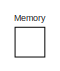
[diagram: root canvas - part 1/2, top right region]
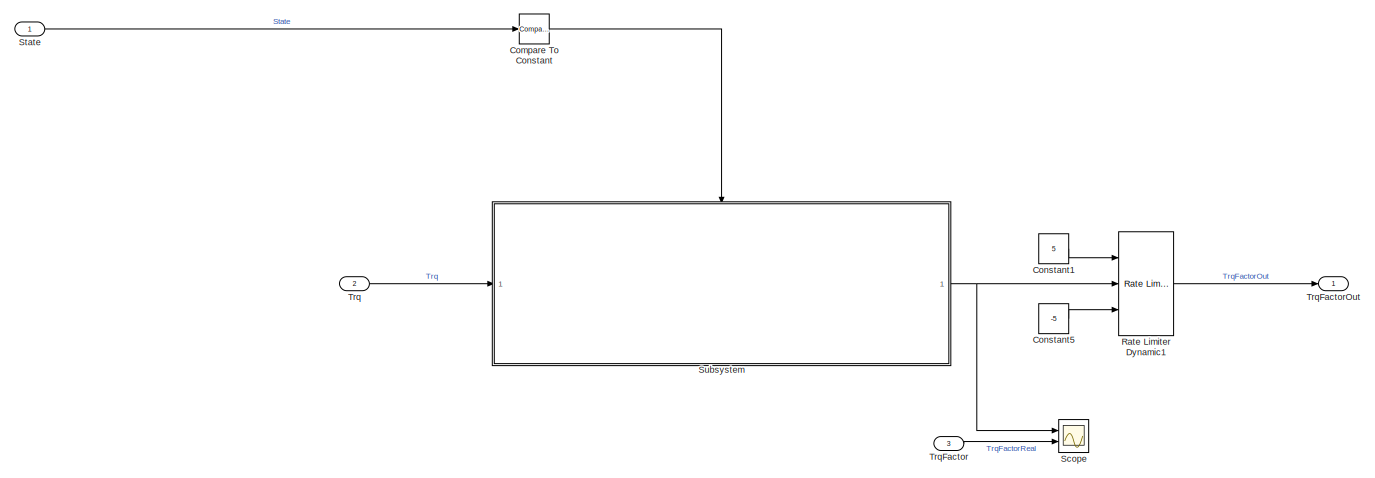
[diagram: root canvas - part 2/2, center side, full height]
MODEL slx_c1973f408156
KIND model
CONFIG AbsTol = auto
CONFIG EnableMultiTasking = off
CONFIG FixedStep = 0.01
CONFIG MaxStep = auto
CONFIG MinStep = auto
CONFIG RelTol = 1e-3
CONFIG SampleTimeConstraint = Unconstrained
CONFIG Solver = FixedStepAuto
CONFIG SolverName = FixedStepAuto
CONFIG StartTime = 0.0
CONFIG StopTime = 130
BLOCK [Reference] Compare To Constant  REF=simulink/Logic and Bit
Operations/Compare
To Constant
  Ports = [1, 1]
  SourceBlock = simulink/Logic and Bit\nOperations/Compare\nTo Constant
  SourceProductBaseCode = SL
  SourceProductName = Simulink
  SourceType = Compare To Constant
BLOCK [Constant] Constant1
  Value = 5
BLOCK [Constant] Constant5
  Value = -5
BLOCK [Memory] Memory
BLOCK [Reference] Rate Limiter Dynamic1  REF=simulink/Discontinuities/Rate Limiter
Dynamic
  Ports = [3, 1]
  SourceBlock = simulink/Discontinuities/Rate Limiter\nDynamic
  SourceProductBaseCode = SL
  SourceProductName = Simulink
  SourceType = Rate Limiter Dynamic
BLOCK [Scope] Scope
  Floating = off
  NumInputPorts = 2
  Ports = [2]
  ScopeSpecificationString = Simulink.scopes.TimeScopeBlockCfg('CurrentConfiguration', extmgr.ConfigurationSet(extmgr.Configuration('Core','General UI',true),extmgr.Configuration('Core','Source UI',true),extmgr.Configuration('Sources','WiredSimulink',true),extmgr.Configuration('Visuals','Time Domain',true,'SerializedDisplays',{struct('MinYLimReal','-0.125','MaxYLimReal','1.125','YLabelReal','','MinYLimMag','0.00000','MaxYLimM...<+1361ch>
BLOCK [Inport] State
  IconDisplay = Port number
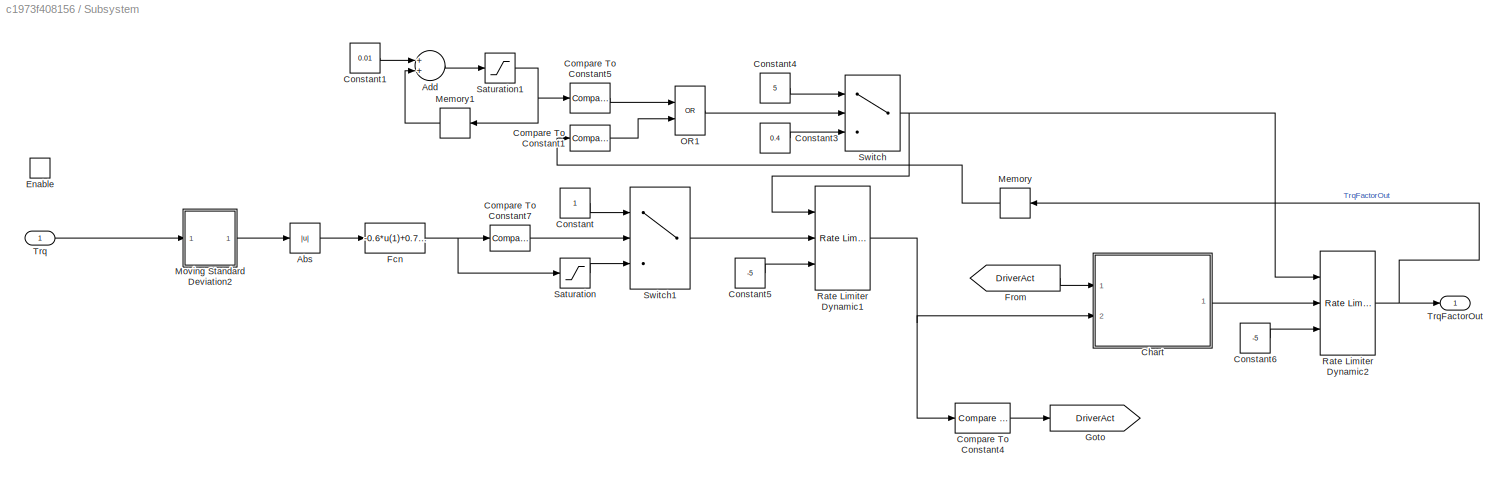
BLOCK [SubSystem] Subsystem
  Ports = [1, 1, 1]
  RequestExecContextInheritance = off
BLOCK [Abs] Subsystem/Abs
  SaturateOnIntegerOverflow = off
BLOCK [Sum] Subsystem/Add
  InputSameDT = off
  OutDataTypeStr = Inherit: Inherit via internal rule
  Ports = [2, 1]
  SaturateOnIntegerOverflow = off
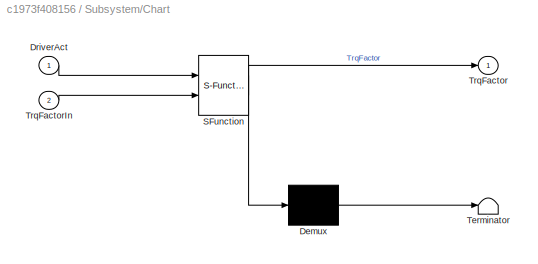
BLOCK [SubSystem] Subsystem/Chart
  ErrorFcn = Stateflow.Translate.translate
  PermitHierarchicalResolution = ExplicitOnly
  Ports = [2, 1]
  RequestExecContextInheritance = off
  SFBlockType = Chart
  TreatAsAtomicUnit = on
BLOCK [Demux] Subsystem/Chart/ Demux 
  Outputs = 1
  Ports = [1, 1]
BLOCK [S-Function] Subsystem/Chart/ SFunction 
  EnableBusSupport = on
  FunctionName = sf_sfun
  PortCounts = [2 2]
  Ports = [2, 2]
  SFcnIsStateOwnerBlock = off
  SFunctionDeploymentMode = off
  Tag = Stateflow S-Function TrqFactor 3
BLOCK [Terminator] Subsystem/Chart/ Terminator 
BLOCK [Inport] Subsystem/Chart/DriverAct
  IconDisplay = Port number
BLOCK [Outport] Subsystem/Chart/TrqFactor
  IconDisplay = Port number
BLOCK [Inport] Subsystem/Chart/TrqFactorIn
  IconDisplay = Port number
  Port = 2
BLOCK [Reference] Subsystem/Compare To Constant1  REF=simulink/Logic and Bit
Operations/Compare
To Constant
  Ports = [1, 1]
  SourceBlock = simulink/Logic and Bit\nOperations/Compare\nTo Constant
  SourceProductBaseCode = SL
  SourceProductName = Simulink
  SourceType = Compare To Constant
BLOCK [Reference] Subsystem/Compare To Constant4  REF=simulink/Logic and Bit
Operations/Compare
To Constant
  Ports = [1, 1]
  SourceBlock = simulink/Logic and Bit\nOperations/Compare\nTo Constant
  SourceProductBaseCode = SL
  SourceProductName = Simulink
  SourceType = Compare To Constant
BLOCK [Reference] Subsystem/Compare To Constant5  REF=simulink/Logic and Bit
Operations/Compare
To Constant
  Ports = [1, 1]
  SourceBlock = simulink/Logic and Bit\nOperations/Compare\nTo Constant
  SourceProductBaseCode = SL
  SourceProductName = Simulink
  SourceType = Compare To Constant
BLOCK [Reference] Subsystem/Compare To Constant7  REF=simulink/Logic and Bit
Operations/Compare
To Constant
  Ports = [1, 1]
  SourceBlock = simulink/Logic and Bit\nOperations/Compare\nTo Constant
  SourceProductBaseCode = SL
  SourceProductName = Simulink
  SourceType = Compare To Constant
BLOCK [Constant] Subsystem/Constant
BLOCK [Constant] Subsystem/Constant1
  Value = 0.01
BLOCK [Constant] Subsystem/Constant3
  Value = 0.4
BLOCK [Constant] Subsystem/Constant4
  Value = 5
BLOCK [Constant] Subsystem/Constant5
  Value = -5
BLOCK [Constant] Subsystem/Constant6
  Value = -5
BLOCK [EnablePort] Subsystem/Enable
  Ports = []
  StatesWhenEnabling = reset
BLOCK [Fcn] Subsystem/Fcn
  Expr = -0.6*u(1)+0.75
BLOCK [From] Subsystem/From
  GotoTag = DriverAct
BLOCK [Goto] Subsystem/Goto
  GotoTag = DriverAct
BLOCK [Memory] Subsystem/Memory
BLOCK [Memory] Subsystem/Memory1
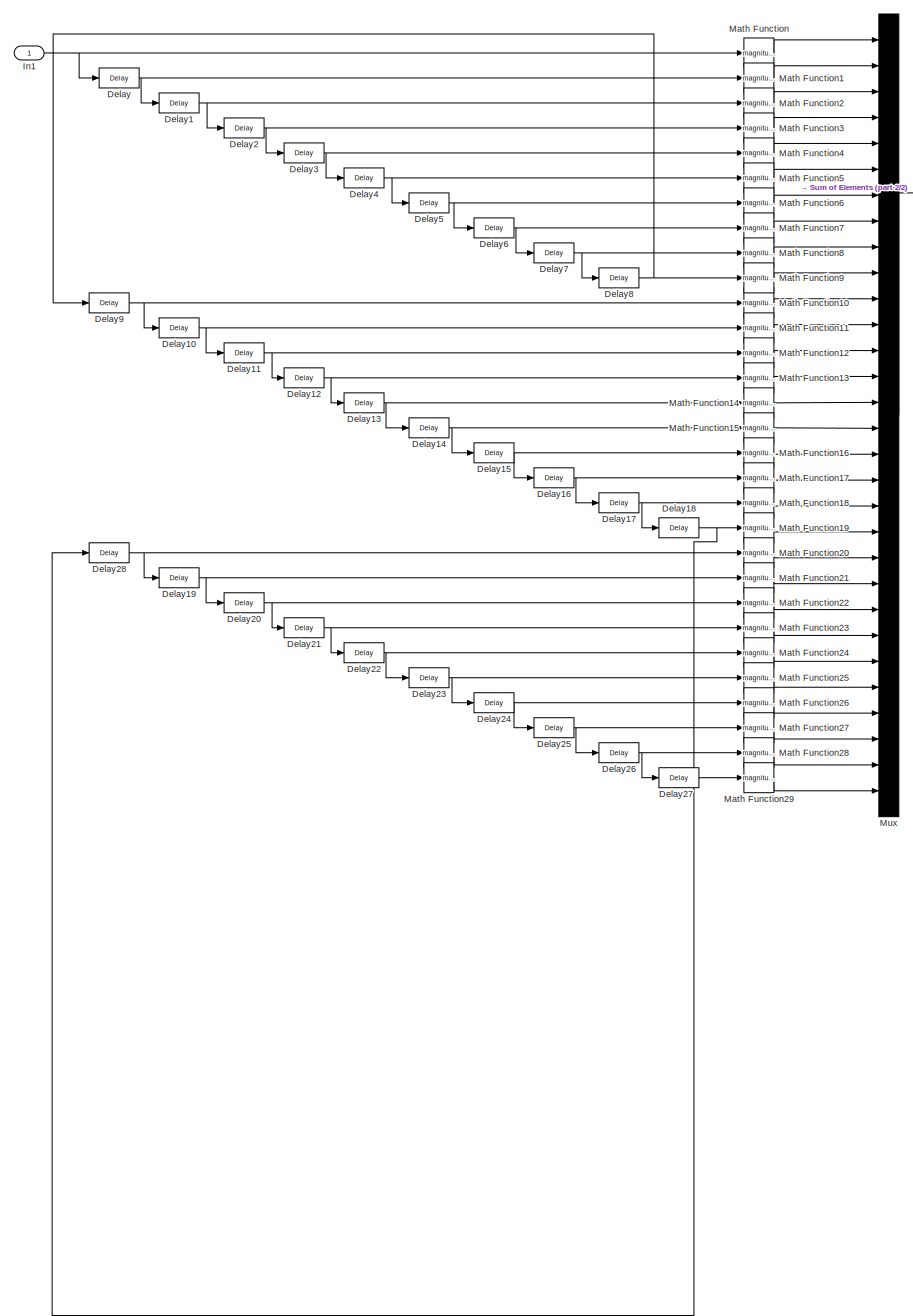
[diagram: Subsystem/Moving Standard Deviation2 - part 1/2, left side, full height]
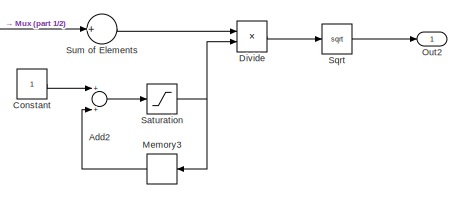
[diagram: Subsystem/Moving Standard Deviation2 - part 2/2, top right region]
BLOCK [SubSystem] Subsystem/Moving Standard Deviation2
  Ports = [1, 1]
  RTWSystemCode = Reusable function
  RequestExecContextInheritance = off
  TreatAsAtomicUnit = on
BLOCK [Sum] Subsystem/Moving Standard Deviation2/Add2
  InputSameDT = off
  OutDataTypeStr = Inherit: Inherit via internal rule
  Ports = [2, 1]
  SaturateOnIntegerOverflow = off
BLOCK [Constant] Subsystem/Moving Standard Deviation2/Constant
BLOCK [Delay] Subsystem/Moving Standard Deviation2/Delay
  DelayLength = 1
  InputPortMap = u0
  Ports = [1, 1]
BLOCK [Delay] Subsystem/Moving Standard Deviation2/Delay1
  DelayLength = 1
  InputPortMap = u0
  Ports = [1, 1]
BLOCK [Delay] Subsystem/Moving Standard Deviation2/Delay10
  DelayLength = 1
  InputPortMap = u0
  Ports = [1, 1]
BLOCK [Delay] Subsystem/Moving Standard Deviation2/Delay11
  DelayLength = 1
  InputPortMap = u0
  Ports = [1, 1]
BLOCK [Delay] Subsystem/Moving Standard Deviation2/Delay12
  DelayLength = 1
  InputPortMap = u0
  Ports = [1, 1]
BLOCK [Delay] Subsystem/Moving Standard Deviation2/Delay13
  DelayLength = 1
  InputPortMap = u0
  Ports = [1, 1]
BLOCK [Delay] Subsystem/Moving Standard Deviation2/Delay14
  DelayLength = 1
  InputPortMap = u0
  Ports = [1, 1]
BLOCK [Delay] Subsystem/Moving Standard Deviation2/Delay15
  DelayLength = 1
  InputPortMap = u0
  Ports = [1, 1]
BLOCK [Delay] Subsystem/Moving Standard Deviation2/Delay16
  DelayLength = 1
  InputPortMap = u0
  Ports = [1, 1]
BLOCK [Delay] Subsystem/Moving Standard Deviation2/Delay17
  DelayLength = 1
  InputPortMap = u0
  Ports = [1, 1]
BLOCK [Delay] Subsystem/Moving Standard Deviation2/Delay18
  DelayLength = 1
  InputPortMap = u0
  Ports = [1, 1]
BLOCK [Delay] Subsystem/Moving Standard Deviation2/Delay19
  DelayLength = 1
  InputPortMap = u0
  Ports = [1, 1]
BLOCK [Delay] Subsystem/Moving Standard Deviation2/Delay2
  DelayLength = 1
  InputPortMap = u0
  Ports = [1, 1]
BLOCK [Delay] Subsystem/Moving Standard Deviation2/Delay20
  DelayLength = 1
  InputPortMap = u0
  Ports = [1, 1]
BLOCK [Delay] Subsystem/Moving Standard Deviation2/Delay21
  DelayLength = 1
  InputPortMap = u0
  Ports = [1, 1]
BLOCK [Delay] Subsystem/Moving Standard Deviation2/Delay22
  DelayLength = 1
  InputPortMap = u0
  Ports = [1, 1]
BLOCK [Delay] Subsystem/Moving Standard Deviation2/Delay23
  DelayLength = 1
  InputPortMap = u0
  Ports = [1, 1]
BLOCK [Delay] Subsystem/Moving Standard Deviation2/Delay24
  DelayLength = 1
  InputPortMap = u0
  Ports = [1, 1]
BLOCK [Delay] Subsystem/Moving Standard Deviation2/Delay25
  DelayLength = 1
  InputPortMap = u0
  Ports = [1, 1]
BLOCK [Delay] Subsystem/Moving Standard Deviation2/Delay26
  DelayLength = 1
  InputPortMap = u0
  Ports = [1, 1]
BLOCK [Delay] Subsystem/Moving Standard Deviation2/Delay27
  DelayLength = 1
  InputPortMap = u0
  Ports = [1, 1]
BLOCK [Delay] Subsystem/Moving Standard Deviation2/Delay28
  DelayLength = 1
  InputPortMap = u0
  Ports = [1, 1]
BLOCK [Delay] Subsystem/Moving Standard Deviation2/Delay3
  DelayLength = 1
  InputPortMap = u0
  Ports = [1, 1]
BLOCK [Delay] Subsystem/Moving Standard Deviation2/Delay4
  DelayLength = 1
  InputPortMap = u0
  Ports = [1, 1]
BLOCK [Delay] Subsystem/Moving Standard Deviation2/Delay5
  DelayLength = 1
  InputPortMap = u0
  Ports = [1, 1]
BLOCK [Delay] Subsystem/Moving Standard Deviation2/Delay6
  DelayLength = 1
  InputPortMap = u0
  Ports = [1, 1]
BLOCK [Delay] Subsystem/Moving Standard Deviation2/Delay7
  DelayLength = 1
  InputPortMap = u0
  Ports = [1, 1]
BLOCK [Delay] Subsystem/Moving Standard Deviation2/Delay8
  DelayLength = 1
  InputPortMap = u0
  Ports = [1, 1]
BLOCK [Delay] Subsystem/Moving Standard Deviation2/Delay9
  DelayLength = 1
  InputPortMap = u0
  Ports = [1, 1]
BLOCK [Product] Subsystem/Moving Standard Deviation2/Divide
  InputSameDT = off
  Inputs = */
  OutDataTypeStr = Inherit: Inherit via internal rule
  Ports = [2, 1]
  RndMeth = Floor
  SaturateOnIntegerOverflow = off
BLOCK [Inport] Subsystem/Moving Standard Deviation2/In1
  IconDisplay = Port number
BLOCK [Math] Subsystem/Moving Standard Deviation2/Math Function
  Operator = magnitude^2
  Ports = [1, 1]
BLOCK [Math] Subsystem/Moving Standard Deviation2/Math Function1
  Operator = magnitude^2
  Ports = [1, 1]
BLOCK [Math] Subsystem/Moving Standard Deviation2/Math Function10
  Operator = magnitude^2
  Ports = [1, 1]
BLOCK [Math] Subsystem/Moving Standard Deviation2/Math Function11
  Operator = magnitude^2
  Ports = [1, 1]
BLOCK [Math] Subsystem/Moving Standard Deviation2/Math Function12
  Operator = magnitude^2
  Ports = [1, 1]
BLOCK [Math] Subsystem/Moving Standard Deviation2/Math Function13
  Operator = magnitude^2
  Ports = [1, 1]
BLOCK [Math] Subsystem/Moving Standard Deviation2/Math Function14
  Operator = magnitude^2
  Ports = [1, 1]
BLOCK [Math] Subsystem/Moving Standard Deviation2/Math Function15
  Operator = magnitude^2
  Ports = [1, 1]
BLOCK [Math] Subsystem/Moving Standard Deviation2/Math Function16
  Operator = magnitude^2
  Ports = [1, 1]
BLOCK [Math] Subsystem/Moving Standard Deviation2/Math Function17
  Operator = magnitude^2
  Ports = [1, 1]
BLOCK [Math] Subsystem/Moving Standard Deviation2/Math Function18
  Operator = magnitude^2
  Ports = [1, 1]
BLOCK [Math] Subsystem/Moving Standard Deviation2/Math Function19
  Operator = magnitude^2
  Ports = [1, 1]
BLOCK [Math] Subsystem/Moving Standard Deviation2/Math Function2
  Operator = magnitude^2
  Ports = [1, 1]
BLOCK [Math] Subsystem/Moving Standard Deviation2/Math Function20
  Operator = magnitude^2
  Ports = [1, 1]
BLOCK [Math] Subsystem/Moving Standard Deviation2/Math Function21
  Operator = magnitude^2
  Ports = [1, 1]
BLOCK [Math] Subsystem/Moving Standard Deviation2/Math Function22
  Operator = magnitude^2
  Ports = [1, 1]
BLOCK [Math] Subsystem/Moving Standard Deviation2/Math Function23
  Operator = magnitude^2
  Ports = [1, 1]
BLOCK [Math] Subsystem/Moving Standard Deviation2/Math Function24
  Operator = magnitude^2
  Ports = [1, 1]
BLOCK [Math] Subsystem/Moving Standard Deviation2/Math Function25
  Operator = magnitude^2
  Ports = [1, 1]
BLOCK [Math] Subsystem/Moving Standard Deviation2/Math Function26
  Operator = magnitude^2
  Ports = [1, 1]
BLOCK [Math] Subsystem/Moving Standard Deviation2/Math Function27
  Operator = magnitude^2
  Ports = [1, 1]
BLOCK [Math] Subsystem/Moving Standard Deviation2/Math Function28
  Operator = magnitude^2
  Ports = [1, 1]
BLOCK [Math] Subsystem/Moving Standard Deviation2/Math Function29
  Operator = magnitude^2
  Ports = [1, 1]
BLOCK [Math] Subsystem/Moving Standard Deviation2/Math Function3
  Operator = magnitude^2
  Ports = [1, 1]
BLOCK [Math] Subsystem/Moving Standard Deviation2/Math Function4
  Operator = magnitude^2
  Ports = [1, 1]
BLOCK [Math] Subsystem/Moving Standard Deviation2/Math Function5
  Operator = magnitude^2
  Ports = [1, 1]
BLOCK [Math] Subsystem/Moving Standard Deviation2/Math Function6
  Operator = magnitude^2
  Ports = [1, 1]
BLOCK [Math] Subsystem/Moving Standard Deviation2/Math Function7
  Operator = magnitude^2
  Ports = [1, 1]
BLOCK [Math] Subsystem/Moving Standard Deviation2/Math Function8
  Operator = magnitude^2
  Ports = [1, 1]
BLOCK [Math] Subsystem/Moving Standard Deviation2/Math Function9
  Operator = magnitude^2
  Ports = [1, 1]
BLOCK [Memory] Subsystem/Moving Standard Deviation2/Memory3
  InheritSampleTime = on
BLOCK [Mux] Subsystem/Moving Standard Deviation2/Mux
  DisplayOption = bar
  Inputs = 30
  Ports = [30, 1]
BLOCK [Outport] Subsystem/Moving Standard Deviation2/Out2
  IconDisplay = Port number
BLOCK [Saturate] Subsystem/Moving Standard Deviation2/Saturation
  AttributesFormatString = Min = %<LowerLimit>  Max = %<UpperLimit>
  InputPortMap = u0
  LowerLimit = 1
  Ports = [1, 1]
  UpperLimit = 30
BLOCK [Sqrt] Subsystem/Moving Standard Deviation2/Sqrt
BLOCK [Sum] Subsystem/Moving Standard Deviation2/Sum of Elements
  InputSameDT = off
  Inputs = +
  Ports = [1, 1]
  SaturateOnIntegerOverflow = off
BLOCK [Logic] Subsystem/OR1
  AllPortsSameDT = off
  Operator = OR
  OutDataTypeStr = boolean
  Ports = [2, 1]
BLOCK [Reference] Subsystem/Rate Limiter Dynamic1  REF=simulink/Discontinuities/Rate Limiter
Dynamic
  Ports = [3, 1]
  SourceBlock = simulink/Discontinuities/Rate Limiter\nDynamic
  SourceProductBaseCode = SL
  SourceProductName = Simulink
  SourceType = Rate Limiter Dynamic
BLOCK [Reference] Subsystem/Rate Limiter Dynamic2  REF=simulink/Discontinuities/Rate Limiter
Dynamic
  Ports = [3, 1]
  SourceBlock = simulink/Discontinuities/Rate Limiter\nDynamic
  SourceProductBaseCode = SL
  SourceProductName = Simulink
  SourceType = Rate Limiter Dynamic
BLOCK [Saturate] Subsystem/Saturation
  InputPortMap = u0
  LowerLimit = 0
  Ports = [1, 1]
  UpperLimit = 0.4
BLOCK [Saturate] Subsystem/Saturation1
  InputPortMap = u0
  Ports = [1, 1]
  UpperLimit = 0.3
BLOCK [Switch] Subsystem/Switch
  Criteria = u2 > Threshold
  InputSameDT = off
  SaturateOnIntegerOverflow = off
  Threshold = 0.4
BLOCK [Switch] Subsystem/Switch1
  Criteria = u2 > Threshold
  InputSameDT = off
  SaturateOnIntegerOverflow = off
BLOCK [Inport] Subsystem/Trq
  IconDisplay = Port number
BLOCK [Outport] Subsystem/TrqFactorOut
  IconDisplay = Port number
  InitialOutput = 0
  OutputWhenDisabled = reset
BLOCK [Inport] Trq
  IconDisplay = Port number
  Port = 2
BLOCK [Inport] TrqFactor
  IconDisplay = Port number
  Port = 3
BLOCK [Outport] TrqFactorOut
  IconDisplay = Port number
LINE Compare To Constant:1 -> Subsystem:enable
LINE Constant1:1 -> Rate Limiter Dynamic1:1
LINE Constant5:1 -> Rate Limiter Dynamic1:3
LINE Rate Limiter Dynamic1:1 -> TrqFactorOut:1
LINE State:1 -> Compare To Constant:1
LINE Subsystem/Abs:1 -> Subsystem/Fcn:1
LINE Subsystem/Add:1 -> Subsystem/Saturation1:1
LINE Subsystem/Chart:1 -> Subsystem/Rate Limiter Dynamic2:2
LINE Subsystem/Compare To Constant1:1 -> Subsystem/OR1:2
LINE Subsystem/Compare To Constant4:1 -> Subsystem/Goto:1
LINE Subsystem/Compare To Constant5:1 -> Subsystem/OR1:1
LINE Subsystem/Compare To Constant7:1 -> Subsystem/Switch1:2
LINE Subsystem/Constant1:1 -> Subsystem/Add:1
LINE Subsystem/Constant3:1 -> Subsystem/Switch:3
LINE Subsystem/Constant4:1 -> Subsystem/Switch:1
LINE Subsystem/Constant5:1 -> Subsystem/Rate Limiter Dynamic1:3
LINE Subsystem/Constant6:1 -> Subsystem/Rate Limiter Dynamic2:3
LINE Subsystem/Constant:1 -> Subsystem/Switch1:1
NET Subsystem/Fcn:1 -> Subsystem/Compare To Constant7:1, Subsystem/Saturation:1
LINE Subsystem/From:1 -> Subsystem/Chart:1
LINE Subsystem/Memory1:1 -> Subsystem/Add:2
LINE Subsystem/Memory:1 -> Subsystem/Compare To Constant1:1
LINE Subsystem/Moving Standard Deviation2/Add2:1 -> Subsystem/Moving Standard Deviation2/Saturation:1
LINE Subsystem/Moving Standard Deviation2/Constant:1 -> Subsystem/Moving Standard Deviation2/Add2:1
NET Subsystem/Moving Standard Deviation2/Delay10:1 -> Subsystem/Moving Standard Deviation2/Delay11:1, Subsystem/Moving Standard Deviation2/Math Function11:1
NET Subsystem/Moving Standard Deviation2/Delay11:1 -> Subsystem/Moving Standard Deviation2/Delay12:1, Subsystem/Moving Standard Deviation2/Math Function12:1
NET Subsystem/Moving Standard Deviation2/Delay12:1 -> Subsystem/Moving Standard Deviation2/Delay13:1, Subsystem/Moving Standard Deviation2/Math Function13:1
NET Subsystem/Moving Standard Deviation2/Delay13:1 -> Subsystem/Moving Standard Deviation2/Delay14:1, Subsystem/Moving Standard Deviation2/Math Function14:1
NET Subsystem/Moving Standard Deviation2/Delay14:1 -> Subsystem/Moving Standard Deviation2/Delay15:1, Subsystem/Moving Standard Deviation2/Math Function15:1
NET Subsystem/Moving Standard Deviation2/Delay15:1 -> Subsystem/Moving Standard Deviation2/Delay16:1, Subsystem/Moving Standard Deviation2/Math Function16:1
NET Subsystem/Moving Standard Deviation2/Delay16:1 -> Subsystem/Moving Standard Deviation2/Delay17:1, Subsystem/Moving Standard Deviation2/Math Function17:1
NET Subsystem/Moving Standard Deviation2/Delay17:1 -> Subsystem/Moving Standard Deviation2/Delay18:1, Subsystem/Moving Standard Deviation2/Math Function18:1
NET Subsystem/Moving Standard Deviation2/Delay18:1 -> Subsystem/Moving Standard Deviation2/Delay28:1, Subsystem/Moving Standard Deviation2/Math Function19:1
NET Subsystem/Moving Standard Deviation2/Delay19:1 -> Subsystem/Moving Standard Deviation2/Delay20:1, Subsystem/Moving Standard Deviation2/Math Function21:1
NET Subsystem/Moving Standard Deviation2/Delay1:1 -> Subsystem/Moving Standard Deviation2/Delay2:1, Subsystem/Moving Standard Deviation2/Math Function2:1
NET Subsystem/Moving Standard Deviation2/Delay20:1 -> Subsystem/Moving Standard Deviation2/Delay21:1, Subsystem/Moving Standard Deviation2/Math Function22:1
NET Subsystem/Moving Standard Deviation2/Delay21:1 -> Subsystem/Moving Standard Deviation2/Delay22:1, Subsystem/Moving Standard Deviation2/Math Function23:1
NET Subsystem/Moving Standard Deviation2/Delay22:1 -> Subsystem/Moving Standard Deviation2/Delay23:1, Subsystem/Moving Standard Deviation2/Math Function24:1
NET Subsystem/Moving Standard Deviation2/Delay23:1 -> Subsystem/Moving Standard Deviation2/Delay24:1, Subsystem/Moving Standard Deviation2/Math Function25:1
NET Subsystem/Moving Standard Deviation2/Delay24:1 -> Subsystem/Moving Standard Deviation2/Delay25:1, Subsystem/Moving Standard Deviation2/Math Function26:1
NET Subsystem/Moving Standard Deviation2/Delay25:1 -> Subsystem/Moving Standard Deviation2/Delay26:1, Subsystem/Moving Standard Deviation2/Math Function27:1
NET Subsystem/Moving Standard Deviation2/Delay26:1 -> Subsystem/Moving Standard Deviation2/Delay27:1, Subsystem/Moving Standard Deviation2/Math Function28:1
LINE Subsystem/Moving Standard Deviation2/Delay27:1 -> Subsystem/Moving Standard Deviation2/Math Function29:1
NET Subsystem/Moving Standard Deviation2/Delay28:1 -> Subsystem/Moving Standard Deviation2/Delay19:1, Subsystem/Moving Standard Deviation2/Math Function20:1
NET Subsystem/Moving Standard Deviation2/Delay2:1 -> Subsystem/Moving Standard Deviation2/Delay3:1, Subsystem/Moving Standard Deviation2/Math Function3:1
NET Subsystem/Moving Standard Deviation2/Delay3:1 -> Subsystem/Moving Standard Deviation2/Delay4:1, Subsystem/Moving Standard Deviation2/Math Function4:1
NET Subsystem/Moving Standard Deviation2/Delay4:1 -> Subsystem/Moving Standard Deviation2/Delay5:1, Subsystem/Moving Standard Deviation2/Math Function5:1
NET Subsystem/Moving Standard Deviation2/Delay5:1 -> Subsystem/Moving Standard Deviation2/Delay6:1, Subsystem/Moving Standard Deviation2/Math Function6:1
NET Subsystem/Moving Standard Deviation2/Delay6:1 -> Subsystem/Moving Standard Deviation2/Delay7:1, Subsystem/Moving Standard Deviation2/Math Function7:1
NET Subsystem/Moving Standard Deviation2/Delay7:1 -> Subsystem/Moving Standard Deviation2/Delay8:1, Subsystem/Moving Standard Deviation2/Math Function8:1
NET Subsystem/Moving Standard Deviation2/Delay8:1 -> Subsystem/Moving Standard Deviation2/Delay9:1, Subsystem/Moving Standard Deviation2/Math Function9:1
NET Subsystem/Moving Standard Deviation2/Delay9:1 -> Subsystem/Moving Standard Deviation2/Delay10:1, Subsystem/Moving Standard Deviation2/Math Function10:1
NET Subsystem/Moving Standard Deviation2/Delay:1 -> Subsystem/Moving Standard Deviation2/Delay1:1, Subsystem/Moving Standard Deviation2/Math Function1:1
LINE Subsystem/Moving Standard Deviation2/Divide:1 -> Subsystem/Moving Standard Deviation2/Sqrt:1
NET Subsystem/Moving Standard Deviation2/In1:1 -> Subsystem/Moving Standard Deviation2/Delay:1, Subsystem/Moving Standard Deviation2/Math Function:1
LINE Subsystem/Moving Standard Deviation2/Math Function10:1 -> Subsystem/Moving Standard Deviation2/Mux:11
LINE Subsystem/Moving Standard Deviation2/Math Function11:1 -> Subsystem/Moving Standard Deviation2/Mux:12
LINE Subsystem/Moving Standard Deviation2/Math Function12:1 -> Subsystem/Moving Standard Deviation2/Mux:13
LINE Subsystem/Moving Standard Deviation2/Math Function13:1 -> Subsystem/Moving Standard Deviation2/Mux:14
LINE Subsystem/Moving Standard Deviation2/Math Function14:1 -> Subsystem/Moving Standard Deviation2/Mux:15
LINE Subsystem/Moving Standard Deviation2/Math Function15:1 -> Subsystem/Moving Standard Deviation2/Mux:16
LINE Subsystem/Moving Standard Deviation2/Math Function16:1 -> Subsystem/Moving Standard Deviation2/Mux:17
LINE Subsystem/Moving Standard Deviation2/Math Function17:1 -> Subsystem/Moving Standard Deviation2/Mux:18
LINE Subsystem/Moving Standard Deviation2/Math Function18:1 -> Subsystem/Moving Standard Deviation2/Mux:19
LINE Subsystem/Moving Standard Deviation2/Math Function19:1 -> Subsystem/Moving Standard Deviation2/Mux:20
LINE Subsystem/Moving Standard Deviation2/Math Function1:1 -> Subsystem/Moving Standard Deviation2/Mux:2
LINE Subsystem/Moving Standard Deviation2/Math Function20:1 -> Subsystem/Moving Standard Deviation2/Mux:21
LINE Subsystem/Moving Standard Deviation2/Math Function21:1 -> Subsystem/Moving Standard Deviation2/Mux:22
LINE Subsystem/Moving Standard Deviation2/Math Function22:1 -> Subsystem/Moving Standard Deviation2/Mux:23
LINE Subsystem/Moving Standard Deviation2/Math Function23:1 -> Subsystem/Moving Standard Deviation2/Mux:24
LINE Subsystem/Moving Standard Deviation2/Math Function24:1 -> Subsystem/Moving Standard Deviation2/Mux:25
LINE Subsystem/Moving Standard Deviation2/Math Function25:1 -> Subsystem/Moving Standard Deviation2/Mux:26
LINE Subsystem/Moving Standard Deviation2/Math Function26:1 -> Subsystem/Moving Standard Deviation2/Mux:27
LINE Subsystem/Moving Standard Deviation2/Math Function27:1 -> Subsystem/Moving Standard Deviation2/Mux:28
LINE Subsystem/Moving Standard Deviation2/Math Function28:1 -> Subsystem/Moving Standard Deviation2/Mux:29
LINE Subsystem/Moving Standard Deviation2/Math Function29:1 -> Subsystem/Moving Standard Deviation2/Mux:30
LINE Subsystem/Moving Standard Deviation2/Math Function2:1 -> Subsystem/Moving Standard Deviation2/Mux:3
LINE Subsystem/Moving Standard Deviation2/Math Function3:1 -> Subsystem/Moving Standard Deviation2/Mux:4
LINE Subsystem/Moving Standard Deviation2/Math Function4:1 -> Subsystem/Moving Standard Deviation2/Mux:5
LINE Subsystem/Moving Standard Deviation2/Math Function5:1 -> Subsystem/Moving Standard Deviation2/Mux:6
LINE Subsystem/Moving Standard Deviation2/Math Function6:1 -> Subsystem/Moving Standard Deviation2/Mux:7
LINE Subsystem/Moving Standard Deviation2/Math Function7:1 -> Subsystem/Moving Standard Deviation2/Mux:8
LINE Subsystem/Moving Standard Deviation2/Math Function8:1 -> Subsystem/Moving Standard Deviation2/Mux:9
LINE Subsystem/Moving Standard Deviation2/Math Function9:1 -> Subsystem/Moving Standard Deviation2/Mux:10
LINE Subsystem/Moving Standard Deviation2/Math Function:1 -> Subsystem/Moving Standard Deviation2/Mux:1
LINE Subsystem/Moving Standard Deviation2/Memory3:1 -> Subsystem/Moving Standard Deviation2/Add2:2
LINE Subsystem/Moving Standard Deviation2/Mux:1 -> Subsystem/Moving Standard Deviation2/Sum of Elements:1
NET Subsystem/Moving Standard Deviation2/Saturation:1 -> Subsystem/Moving Standard Deviation2/Divide:2, Subsystem/Moving Standard Deviation2/Memory3:1
LINE Subsystem/Moving Standard Deviation2/Sqrt:1 -> Subsystem/Moving Standard Deviation2/Out2:1
LINE Subsystem/Moving Standard Deviation2/Sum of Elements:1 -> Subsystem/Moving Standard Deviation2/Divide:1
LINE Subsystem/Moving Standard Deviation2:1 -> Subsystem/Abs:1
LINE Subsystem/OR1:1 -> Subsystem/Switch:2
NET Subsystem/Rate Limiter Dynamic1:1 -> Subsystem/Chart:2, Subsystem/Compare To Constant4:1
NET Subsystem/Rate Limiter Dynamic2:1 -> Subsystem/Memory:1, Subsystem/TrqFactorOut:1
NET Subsystem/Saturation1:1 -> Subsystem/Compare To Constant5:1, Subsystem/Memory1:1
LINE Subsystem/Saturation:1 -> Subsystem/Switch1:3
LINE Subsystem/Switch1:1 -> Subsystem/Rate Limiter Dynamic1:2
NET Subsystem/Switch:1 -> Subsystem/Rate Limiter Dynamic1:1, Subsystem/Rate Limiter Dynamic2:1
LINE Subsystem/Trq:1 -> Subsystem/Moving Standard Deviation2:1
NET Subsystem:1 -> Rate Limiter Dynamic1:2, Scope:1
LINE Trq:1 -> Subsystem:1
LINE TrqFactor:1 -> Scope:2
note: NET lines group one-source signal fan-out (src -> all destinations, sorted); 1:1 wires keep LINE
CHART Subsystem/Chart states=2 transitions=5
  STATE_LABEL 'DriverAct\nen:\nTrqFactor = 0;\ndu:\nTrqFactor = 0;'
  STATE_LABEL 'ADASAct\nen:\nTrqFactor = TrqFactorIn;\ndu:\nTrqFactor = TrqFactorIn;\n'
